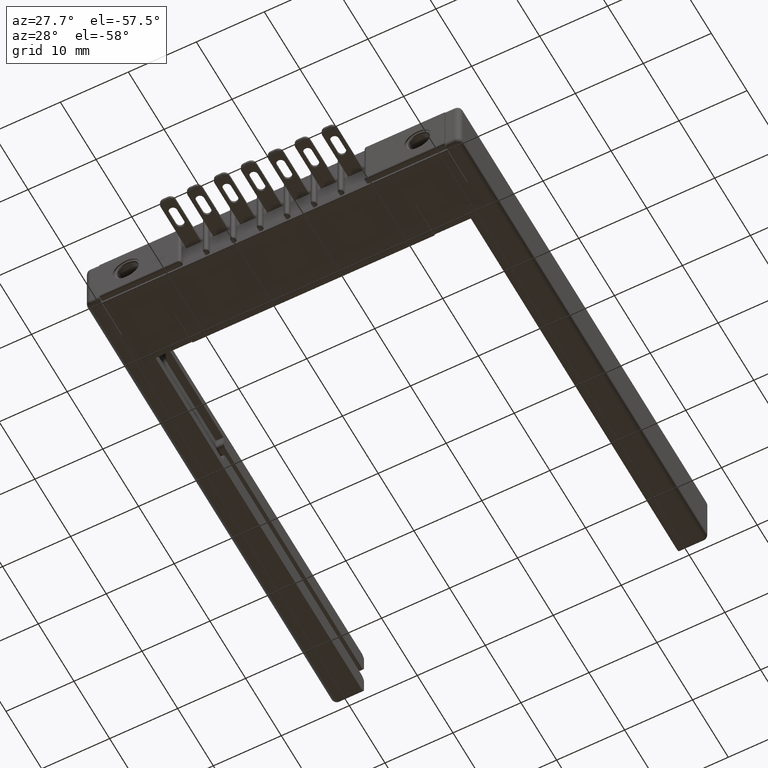
[diagram: clean part render]
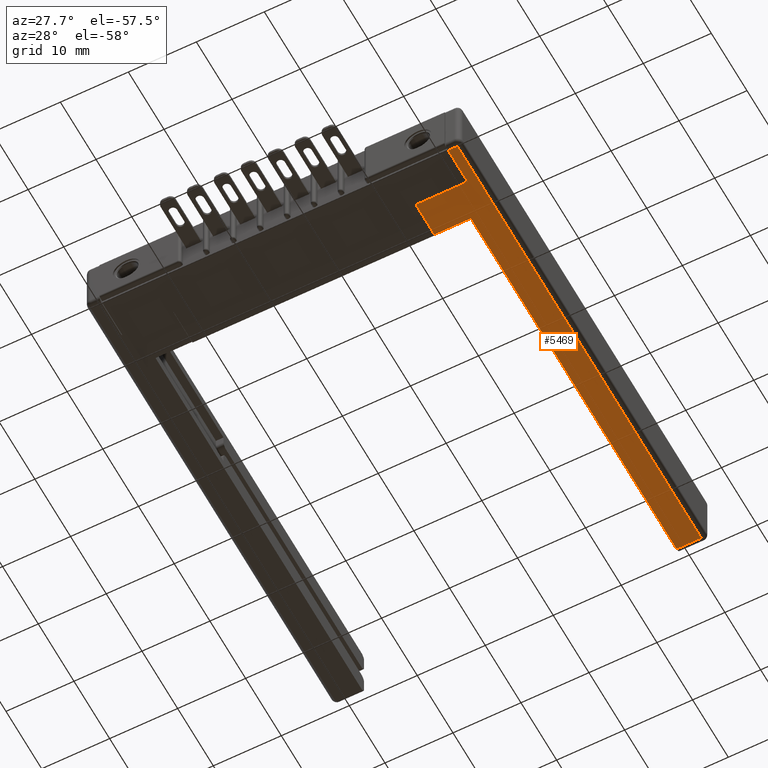
[diagram: same view with one face highlighted and labeled with its STEP entity id]
A machine part, auxiliary view. The second image highlights one B-rep face of the part: STEP entity #5469.
In plain terms, the highlighted planar face has unit normal (-0, -0, 1).
Its self-contained STEP definition (entity closure, byte-faithful):
#72 = EDGE_CURVE ( 'NONE', #2257, #8179, #6594, .T. ) ;
#103 = CARTESIAN_POINT ( 'NONE',  ( 0.1730000000000000400, 0.4499999999999999600, 0.0000000000000000000 ) ) ;
#173 = CARTESIAN_POINT ( 'NONE',  ( 0.3840000000000000600, 0.4499999999999999600, 0.0000000000000000000 ) ) ;
#316 = VECTOR ( 'NONE', #1239, 39.37007874015748100 ) ;
#322 = DIRECTION ( 'NONE',  ( -1.000000000000000000, 0.0000000000000000000, -0.0000000000000000000 ) ) ;
#1211 = DIRECTION ( 'NONE',  ( -1.393799996767481300E-016, 1.000000000000000000, -0.0000000000000000000 ) ) ;
#1239 = DIRECTION ( 'NONE',  ( 0.0000000000000000000, -1.000000000000000000, 0.0000000000000000000 ) ) ;
#1289 = CARTESIAN_POINT ( 'NONE',  ( 0.02999999999999999900, 0.0000000000000000000, 0.0000000000000000000 ) ) ;
#1626 = DIRECTION ( 'NONE',  ( -0.0000000000000000000, 1.000000000000000000, -0.0000000000000000000 ) ) ;
#2257 = VERTEX_POINT ( 'NONE', #10489 ) ;
#2421 = EDGE_CURVE ( 'NONE', #9430, #4490, #3831, .T. ) ;
#2798 = VECTOR ( 'NONE', #10010, 39.37007874015748100 ) ;
#2953 = CARTESIAN_POINT ( 'NONE',  ( 0.0000000000000000000, 2.719999999999999800, 0.0000000000000000000 ) ) ;
#3155 = VECTOR ( 'NONE', #1211, 39.37007874015748100 ) ;
#3285 = DIRECTION ( 'NONE',  ( -1.000000000000000000, -0.0000000000000000000, -0.0000000000000000000 ) ) ;
#3307 = VECTOR ( 'NONE', #8880, 39.37007874015748100 ) ;
#3550 = PLANE ( 'NONE',  #10716 ) ;
#3649 = VERTEX_POINT ( 'NONE', #7676 ) ;
#3702 = EDGE_CURVE ( 'NONE', #6473, #2257, #11940, .T. ) ;
#3805 = ORIENTED_EDGE ( 'NONE', *, *, #13559, .T. ) ;
#3831 = LINE ( 'NONE', #10343, #3155 ) ;
#3963 = VERTEX_POINT ( 'NONE', #11821 ) ;
#4086 = EDGE_CURVE ( 'NONE', #11231, #3649, #8409, .T. ) ;
#4171 = ORIENTED_EDGE ( 'NONE', *, *, #2421, .T. ) ;
#4320 = ORIENTED_EDGE ( 'NONE', *, *, #3702, .T. ) ;
#4490 = VERTEX_POINT ( 'NONE', #7096 ) ;
#4611 = CARTESIAN_POINT ( 'NONE',  ( 0.0000000000000000000, 0.0000000000000000000, 0.0000000000000000000 ) ) ;
#5211 = CARTESIAN_POINT ( 'NONE',  ( 0.3840000000000000600, 0.2450000000000000000, 0.0000000000000000000 ) ) ;
#5469 = ADVANCED_FACE ( 'NONE', ( #5782 ), #3550, .F. ) ;
#5538 = LINE ( 'NONE', #7119, #11346 ) ;
#5782 = FACE_OUTER_BOUND ( 'NONE', #7648, .T. ) ;
#5934 = CARTESIAN_POINT ( 'NONE',  ( 0.1730000000000000400, 2.750000000000000000, 0.0000000000000000000 ) ) ;
#6231 = LINE ( 'NONE', #2953, #13569 ) ;
#6473 = VERTEX_POINT ( 'NONE', #5211 ) ;
#6594 = LINE ( 'NONE', #103, #8822 ) ;
#7074 = CARTESIAN_POINT ( 'NONE',  ( 0.08400000000000007500, 0.02999999999999998800, 0.0000000000000000000 ) ) ;
#7096 = CARTESIAN_POINT ( 'NONE',  ( 0.08400000000000004700, 0.2449999999999999400, 0.0000000000000000000 ) ) ;
#7119 = CARTESIAN_POINT ( 'NONE',  ( 0.08400000000000010200, 0.02999999999999997100, 0.0000000000000000000 ) ) ;
#7370 = DIRECTION ( 'NONE',  ( -1.000000000000000000, 0.0000000000000000000, 0.0000000000000000000 ) ) ;
#7648 = EDGE_LOOP ( 'NONE', ( #13989, #13424, #13679, #3805, #4171, #9236, #4320, #7677 ) ) ;
#7676 = CARTESIAN_POINT ( 'NONE',  ( 0.02999999999999999900, 0.02999999999999998800, 0.0000000000000000000 ) ) ;
#7677 = ORIENTED_EDGE ( 'NONE', *, *, #72, .T. ) ;
#7891 = CARTESIAN_POINT ( 'NONE',  ( 0.3840000000000000600, 0.2450000000000000000, 0.0000000000000000000 ) ) ;
#8168 = CARTESIAN_POINT ( 'NONE',  ( 0.02999999999999999900, 2.719999999999999800, 0.0000000000000000000 ) ) ;
#8179 = VERTEX_POINT ( 'NONE', #9138 ) ;
#8409 = LINE ( 'NONE', #1289, #316 ) ;
#8657 = LINE ( 'NONE', #5934, #9689 ) ;
#8822 = VECTOR ( 'NONE', #3285, 39.37007874015748100 ) ;
#8880 = DIRECTION ( 'NONE',  ( -0.0000000000000000000, 1.000000000000000000, -0.0000000000000000000 ) ) ;
#9138 = CARTESIAN_POINT ( 'NONE',  ( 0.1730000000000000400, 0.4499999999999999600, 0.0000000000000000000 ) ) ;
#9236 = ORIENTED_EDGE ( 'NONE', *, *, #11028, .T. ) ;
#9430 = VERTEX_POINT ( 'NONE', #7074 ) ;
#9689 = VECTOR ( 'NONE', #1626, 39.37007874015748100 ) ;
#10010 = DIRECTION ( 'NONE',  ( 1.000000000000000000, 1.138269997360109700E-016, -0.0000000000000000000 ) ) ;
#10207 = DIRECTION ( 'NONE',  ( 1.000000000000000000, -3.508568016442572800E-016, 0.0000000000000000000 ) ) ;
#10343 = CARTESIAN_POINT ( 'NONE',  ( 0.08400000000000004700, 0.2449999999999999400, 0.0000000000000000000 ) ) ;
#10489 = CARTESIAN_POINT ( 'NONE',  ( 0.3840000000000000600, 0.4499999999999999600, 0.0000000000000000000 ) ) ;
#10716 = AXIS2_PLACEMENT_3D ( 'NONE', #4611, #12202, #322 ) ;
#11028 = EDGE_CURVE ( 'NONE', #4490, #6473, #13096, .T. ) ;
#11231 = VERTEX_POINT ( 'NONE', #8168 ) ;
#11346 = VECTOR ( 'NONE', #10207, 39.37007874015748100 ) ;
#11821 = CARTESIAN_POINT ( 'NONE',  ( 0.1730000000000000400, 2.719999999999999800, 0.0000000000000000000 ) ) ;
#11940 = LINE ( 'NONE', #173, #3307 ) ;
#12202 = DIRECTION ( 'NONE',  ( 0.0000000000000000000, 0.0000000000000000000, -1.000000000000000000 ) ) ;
#12870 = EDGE_CURVE ( 'NONE', #8179, #3963, #8657, .T. ) ;
#13096 = LINE ( 'NONE', #7891, #2798 ) ;
#13424 = ORIENTED_EDGE ( 'NONE', *, *, #13722, .T. ) ;
#13559 = EDGE_CURVE ( 'NONE', #3649, #9430, #5538, .T. ) ;
#13569 = VECTOR ( 'NONE', #7370, 39.37007874015748100 ) ;
#13679 = ORIENTED_EDGE ( 'NONE', *, *, #4086, .T. ) ;
#13722 = EDGE_CURVE ( 'NONE', #3963, #11231, #6231, .T. ) ;
#13989 = ORIENTED_EDGE ( 'NONE', *, *, #12870, .T. ) ;